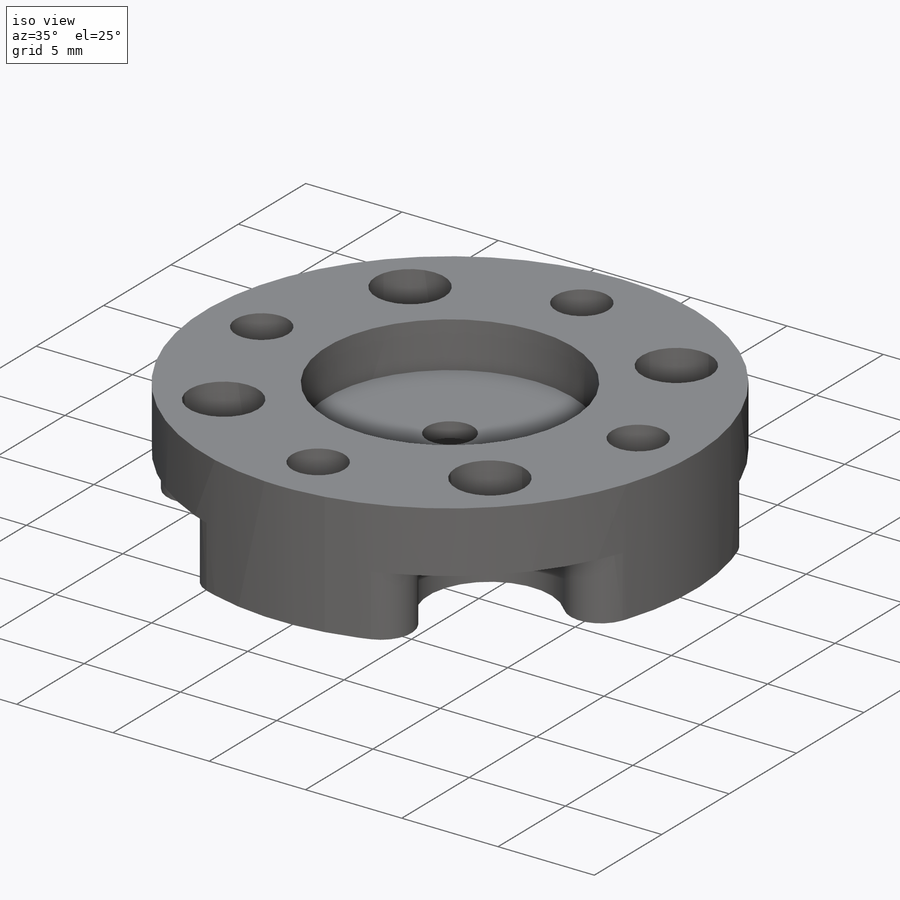
[diagram: iso view]
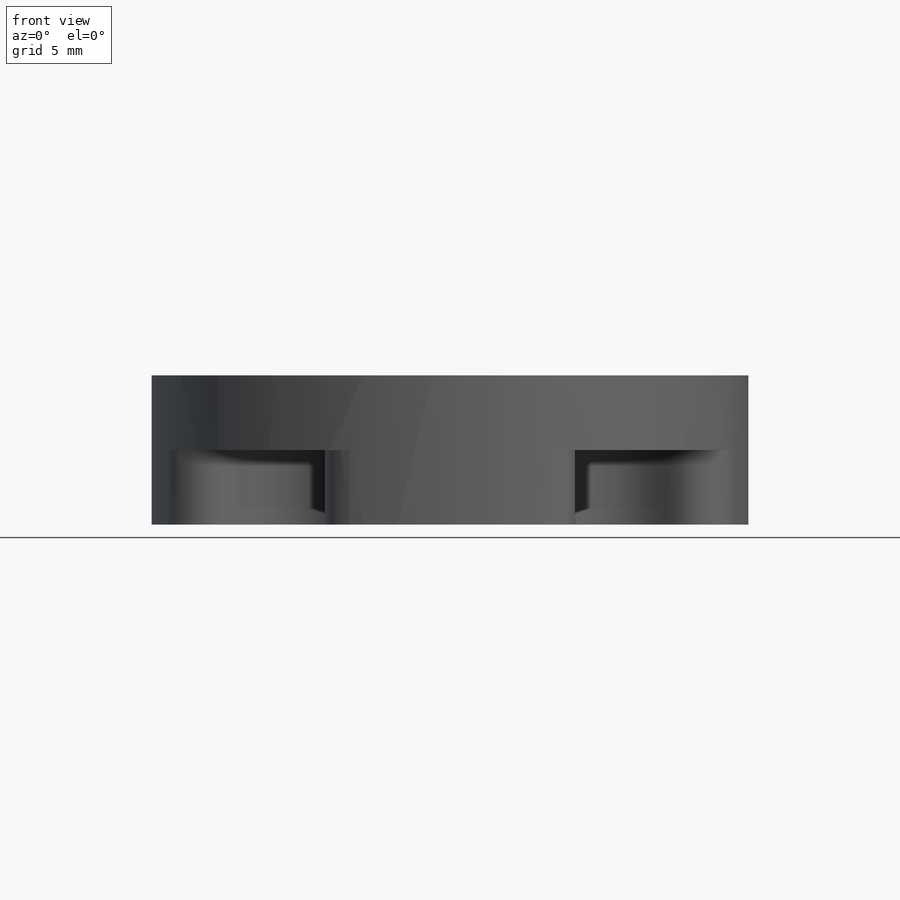
[diagram: front view]
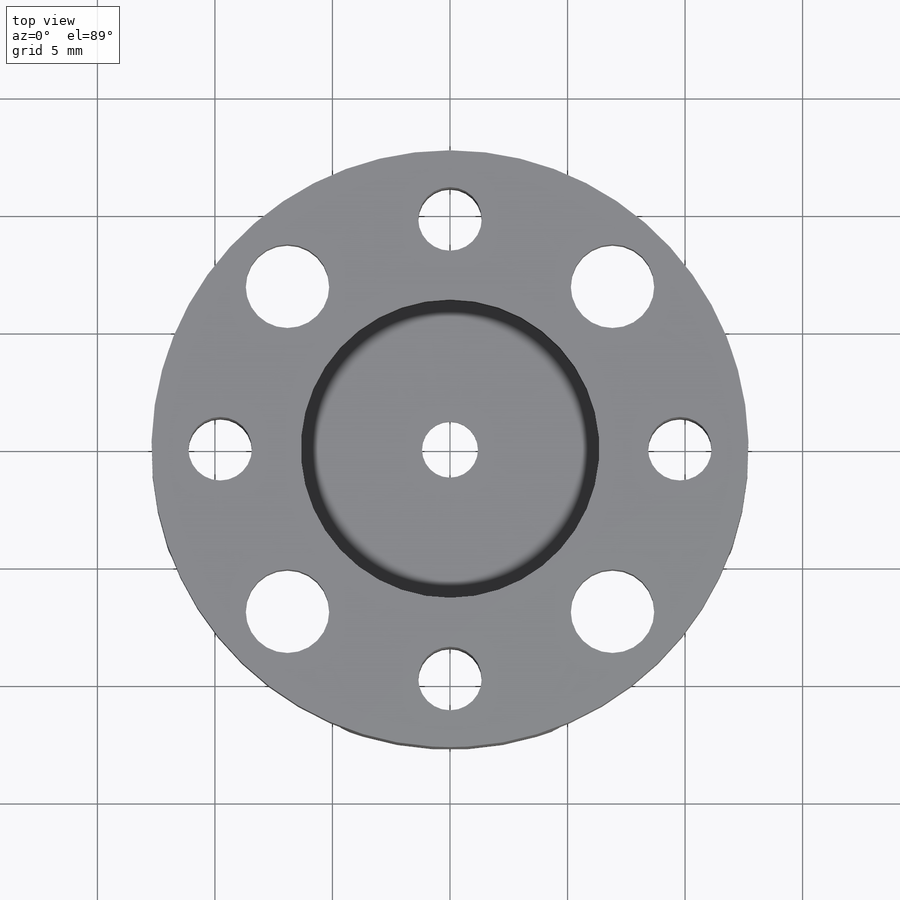
[diagram: top view]
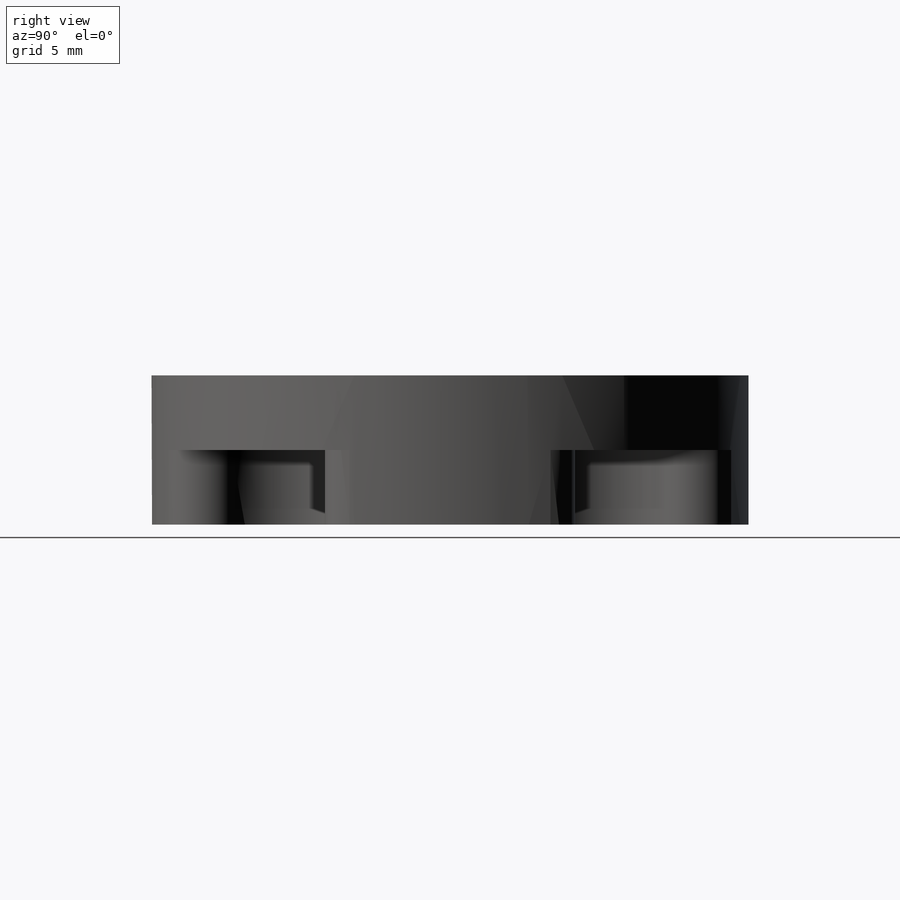
[diagram: right view]
SOLIDWORKS PART (.sldprt)
format: sldprt  version: not decoded by parser v0  size: 269,824 bytes
history: native  units: mm
features: sketch x9, cut_extrude x5, material x1, extrude x1, hole x1, thread x1, pattern_circular x1, fillet x1 (+12 scaffold rows collapsed)
feature tree (32):
  scaffold x12  (default folders/planes/origin — collapsed)
  material  "Material <not specified>"
  sketch  "Sketch1"  dims[D1=25.4mm]
  extrude  "Boss-Extrude1"  Depth=6.35mm
  sketch  "Sketch2"  dims[D1=12.7mm]
  cut_extrude  "Cut-Extrude1"  Depth=2.38125mm
  sketch  "Sketch3"  dims[D1=6.223mm]
  cut_extrude  "Cut-Extrude2"  Depth=3.175mm
  sketch  "Sketch4"  dims[D1=~2.38125mm]
  cut_extrude  "Cut-Extrude3"  [1 undecoded]
  hole  "#6-32 Tapped Hole1"  Diameter=2.7051mm Depth=6.35mm
  sketch  "Sketch6"  dims[D1=9.779mm]
  sketch  "Sketch5"  dims[hole-wizard template sketch: 60 standard entries collapsed; hole parameters kept: c18.Thru Tap Drill Depth=6.35mm]
  thread  "Hole Thread5"  Diameter=3.5052mm  [1 undecoded]
  sketch  "Sketch7"  dims[c1.D3=3.556mm c1.D1=~6.728917mm c2.D1=45.0deg c2.D2=9.779mm]
  cut_extrude  "Cut-Extrude4"  [1 undecoded]
  sketch  "Sketch8"  dims[D1=6.35mm]
  cut_extrude  "Cut-Extrude5"  Depth=3.175mm
  pattern_circular  "CirPattern2"  Count=4 Angle=360deg
  fillet  "Fillet1"  Radius=1.5875mm
  sketch  "Angle line"
decode coverage: 16 of 19 modeling features carry decoded parameters
note: ~ marks probable driven/reference dimensions
note: 3 parameter values undecoded
note: suppression state not decoded; provenance and decode notes live in map.json
